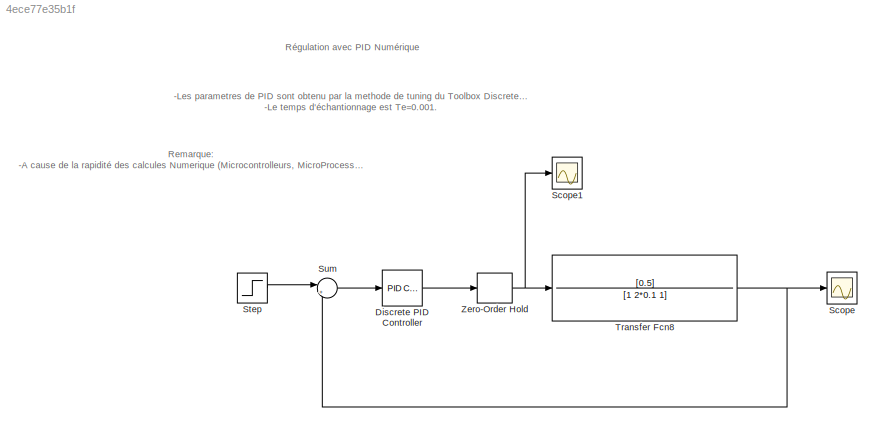
MODEL slx_4ece77e35b1f
KIND model
CONFIG AbsTol = auto
CONFIG EnableMultiTasking = off
CONFIG FixedStep = auto
CONFIG MaxStep = auto
CONFIG MinStep = auto
CONFIG RelTol = 1e-3
CONFIG SampleTimeConstraint = Unconstrained
CONFIG Solver = VariableStepAuto
CONFIG SolverName = VariableStepAuto
CONFIG StartTime = 0.0
CONFIG StopTime = 10.0
BLOCK [Reference] Discrete PID Controller  REF=simulink/Continuous/PID Controller
  Ports = [1, 1]
  SourceBlock = simulink/Continuous/PID Controller
  SourceProductBaseCode = SL
  SourceProductName = Simulink
  SourceType = PID 1dof
BLOCK [Scope] Scope
  NumInputPorts = 1
  Ports = [1]
  ScopeSpecificationString = Simulink.scopes.TimeScopeBlockCfg('CurrentConfiguration', extmgr.ConfigurationSet(extmgr.Configuration('Core','General UI',true),extmgr.Configuration('Core','Source UI',true),extmgr.Configuration('Sources','WiredSimulink',true),extmgr.Configuration('Visuals','Time Domain',true,'SerializedDisplays',{struct('MinYLimReal','-0.13997','MaxYLimReal','1.25971','YLabelReal','','MinYLimMag','0.00000','MaxY...<+1359ch>
BLOCK [Scope] Scope1
  NumInputPorts = 1
  Ports = [1]
  ScopeSpecificationString = Simulink.scopes.TimeScopeBlockCfg('CurrentConfiguration', extmgr.ConfigurationSet(extmgr.Configuration('Core','General UI',true),extmgr.Configuration('Core','Source UI',true),extmgr.Configuration('Sources','WiredSimulink',true,'DataLoggingVariableName','ScopeData1'),extmgr.Configuration('Visuals','Time Domain',true,'SerializedDisplays',{struct('MinYLimReal','-4572.76108','MaxYLimReal','25061.79274...<+1451ch>
BLOCK [Step] Step
  SampleTime = 0
  Time = 0
BLOCK [Sum] Sum
  IconShape = round
  InputSameDT = off
  Inputs = |+-
  OutDataTypeStr = Inherit: Inherit via internal rule
  Ports = [2, 1]
  SaturateOnIntegerOverflow = off
BLOCK [TransferFcn] Transfer Fcn8
  Denominator = [1 2*0.1 1]
  Numerator = [0.5]
BLOCK [ZeroOrderHold] Zero-Order Hold
  SampleTime = 0.001
ANNOTATION (root): Remarque: -A cause de la rapidité des calcules Numerique (Microcontrolleurs, MicroProcesseurs) on peut supposer que le systeme est en temps continue et faire l'etude de ce cas car l'erreur en reponse tends vers zero quand le temps d'echantionnage soit trés petit.
ANNOTATION (root): -Les parametres de PID sont obtenu par la methode de tuning du Toolbox Discrete PID Controller. -Le temps d'échantionnage est Te=0.001.
ANNOTATION (root): Régulation avec PID Numérique
LINE Discrete PID Controller:1 -> Zero-Order Hold:1
LINE Step:1 -> Sum:1
LINE Sum:1 -> Discrete PID Controller:1
NET Transfer Fcn8:1 -> Scope:1, Sum:2
NET Zero-Order Hold:1 -> Scope1:1, Transfer Fcn8:1
note: NET lines group one-source signal fan-out (src -> all destinations, sorted); 1:1 wires keep LINE
